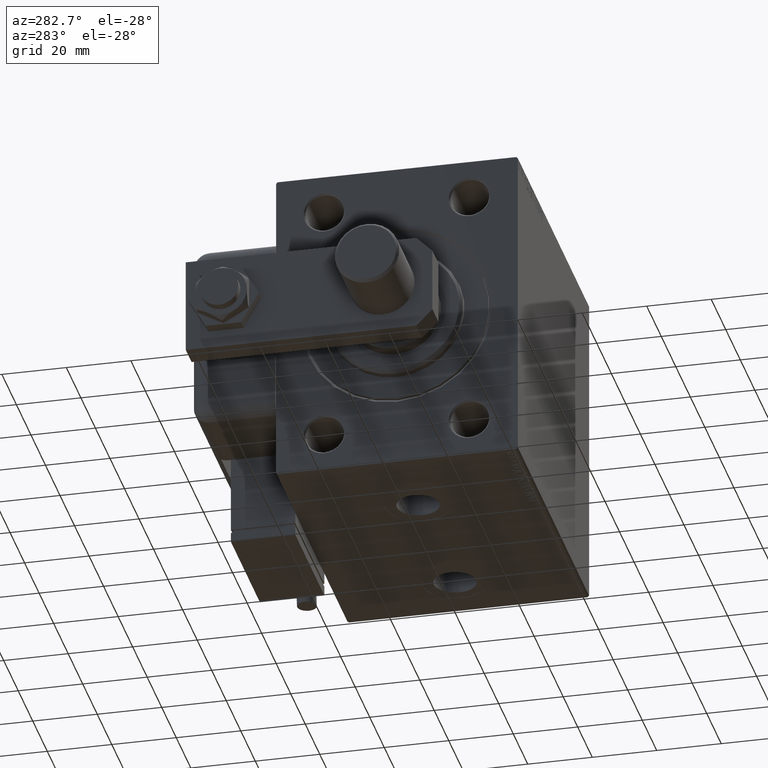
[diagram: clean part render]
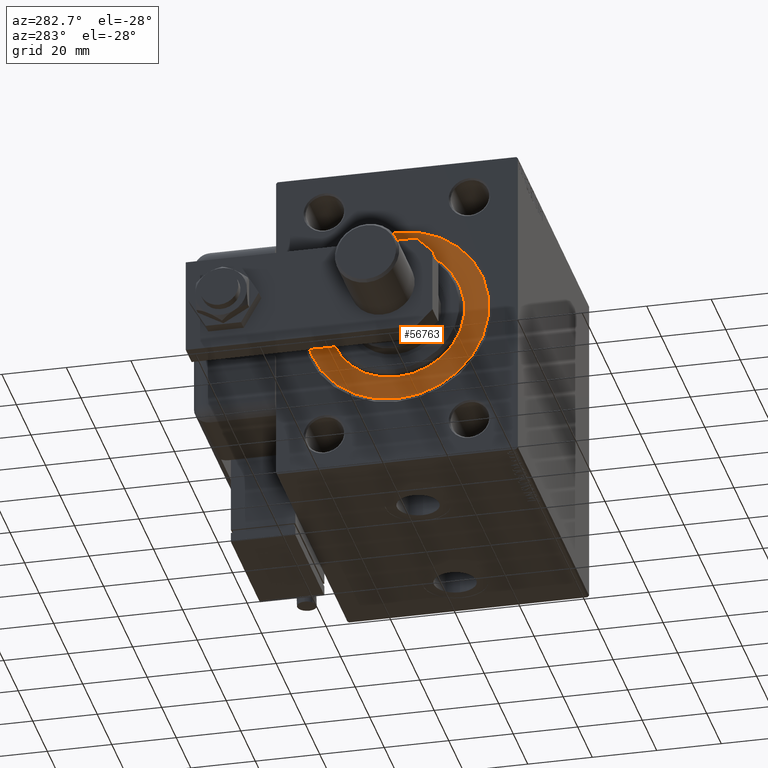
[diagram: same view with one face highlighted and labeled with its STEP entity id]
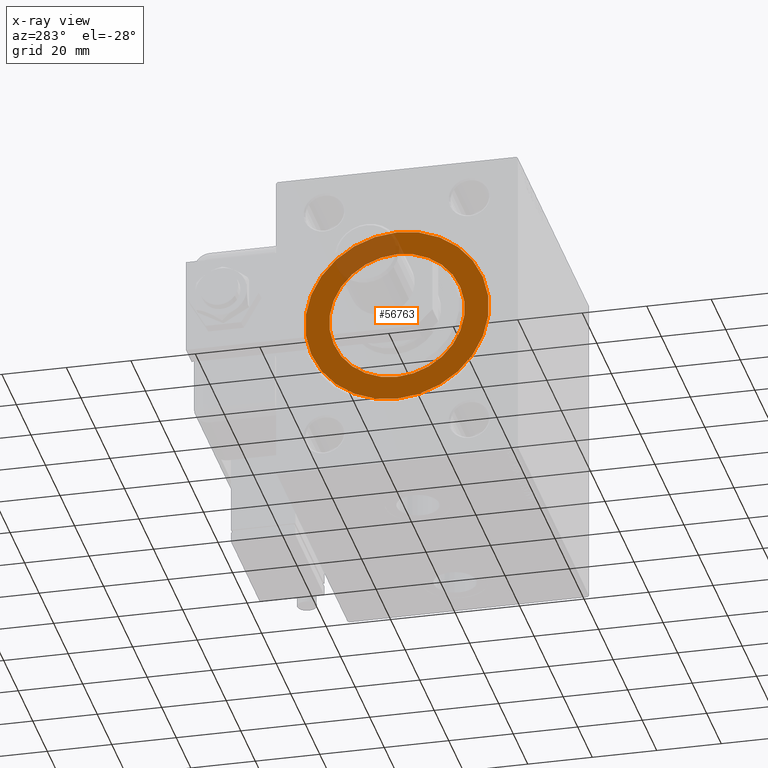
[diagram: x-ray of the same camera — body ghosted, the highlighted face saturated]
A machine part, auxiliary view. The second image highlights one B-rep face of the part: STEP entity #56763.
The next image is the same camera in x-ray: the body ghosted, the highlighted face saturated — about 13% of this face is hidden behind the body in this view.
In plain terms, the highlighted planar face has unit normal (1, -0, -0).
Its self-contained STEP definition (entity closure, byte-faithful):
#60 = VERTEX_POINT ( 'NONE', #15960 ) ;
#1491 = AXIS2_PLACEMENT_3D ( 'NONE', #44667, #55080, #54169 ) ;
#2486 = CARTESIAN_POINT ( 'NONE',  ( 0.000000000000000000, 0.000000000000000000, 0.000000000000000000 ) ) ;
#5552 = FACE_BOUND ( 'NONE', #26628, .T. ) ;
#7046 = EDGE_CURVE ( 'NONE', #60, #34016, #32121, .T. ) ;
#11987 = DIRECTION ( 'NONE',  ( 0.000000000000000000, 0.000000000000000000, -1.000000000000000000 ) ) ;
#14816 = AXIS2_PLACEMENT_3D ( 'NONE', #60349, #41018, #60639 ) ;
#15960 = CARTESIAN_POINT ( 'NONE',  ( 0.000000000000000000, 0.000000000000000000, -28.50000000000000000 ) ) ;
#16158 = EDGE_CURVE ( 'NONE', #46550, #58166, #17668, .T. ) ;
#17664 = CARTESIAN_POINT ( 'NONE',  ( 0.000000000000000000, 3.490243377569956456E-15, 28.50000000000000000 ) ) ;
#17668 = CIRCLE ( 'NONE', #20646, 21.00000000000000000 ) ;
#20646 = AXIS2_PLACEMENT_3D ( 'NONE', #54046, #39934, #11987 ) ;
#20983 = CARTESIAN_POINT ( 'NONE',  ( 0.000000000000000000, 0.000000000000000000, 21.00000000000000000 ) ) ;
#23051 = CIRCLE ( 'NONE', #1491, 21.00000000000000000 ) ;
#23979 = DIRECTION ( 'NONE',  ( 0.000000000000000000, 0.000000000000000000, 1.000000000000000000 ) ) ;
#26628 = EDGE_LOOP ( 'NONE', ( #48745, #58725 ) ) ;
#26730 = DIRECTION ( 'NONE',  ( -1.000000000000000000, 0.000000000000000000, 0.000000000000000000 ) ) ;
#27052 = AXIS2_PLACEMENT_3D ( 'NONE', #47278, #51886, #23979 ) ;
#32121 = CIRCLE ( 'NONE', #57641, 28.50000000000000000 ) ;
#33166 = FACE_OUTER_BOUND ( 'NONE', #57590, .T. ) ;
#34016 = VERTEX_POINT ( 'NONE', #17664 ) ;
#37321 = CIRCLE ( 'NONE', #14816, 28.50000000000000000 ) ;
#39019 = ORIENTED_EDGE ( 'NONE', *, *, #45384, .F. ) ;
#39934 = DIRECTION ( 'NONE',  ( 1.000000000000000000, -0.000000000000000000, 0.000000000000000000 ) ) ;
#41018 = DIRECTION ( 'NONE',  ( -1.000000000000000000, 0.000000000000000000, 0.000000000000000000 ) ) ;
#44132 = PLANE ( 'NONE',  #27052 ) ;
#44667 = CARTESIAN_POINT ( 'NONE',  ( 0.000000000000000000, 0.000000000000000000, 0.000000000000000000 ) ) ;
#45384 = EDGE_CURVE ( 'NONE', #34016, #60, #37321, .T. ) ;
#45437 = DIRECTION ( 'NONE',  ( 0.000000000000000000, 0.000000000000000000, 1.000000000000000000 ) ) ;
#46550 = VERTEX_POINT ( 'NONE', #51436 ) ;
#47278 = CARTESIAN_POINT ( 'NONE',  ( 0.000000000000000000, 0.000000000000000000, 0.000000000000000000 ) ) ;
#48745 = ORIENTED_EDGE ( 'NONE', *, *, #54822, .F. ) ;
#49026 = ORIENTED_EDGE ( 'NONE', *, *, #7046, .F. ) ;
#51436 = CARTESIAN_POINT ( 'NONE',  ( 0.000000000000000000, 2.571758278209441661E-15, -21.00000000000000000 ) ) ;
#51886 = DIRECTION ( 'NONE',  ( -1.000000000000000000, 0.000000000000000000, 0.000000000000000000 ) ) ;
#54046 = CARTESIAN_POINT ( 'NONE',  ( 0.000000000000000000, 0.000000000000000000, 0.000000000000000000 ) ) ;
#54169 = DIRECTION ( 'NONE',  ( 0.000000000000000000, 0.000000000000000000, -1.000000000000000000 ) ) ;
#54822 = EDGE_CURVE ( 'NONE', #58166, #46550, #23051, .T. ) ;
#55080 = DIRECTION ( 'NONE',  ( 1.000000000000000000, -0.000000000000000000, 0.000000000000000000 ) ) ;
#56763 = ADVANCED_FACE ( 'NONE', ( #5552, #33166 ), #44132, .F. ) ;
#57590 = EDGE_LOOP ( 'NONE', ( #49026, #39019 ) ) ;
#57641 = AXIS2_PLACEMENT_3D ( 'NONE', #2486, #26730, #45437 ) ;
#58166 = VERTEX_POINT ( 'NONE', #20983 ) ;
#58725 = ORIENTED_EDGE ( 'NONE', *, *, #16158, .F. ) ;
#60349 = CARTESIAN_POINT ( 'NONE',  ( 0.000000000000000000, 0.000000000000000000, 0.000000000000000000 ) ) ;
#60639 = DIRECTION ( 'NONE',  ( 0.000000000000000000, 0.000000000000000000, 1.000000000000000000 ) ) ;